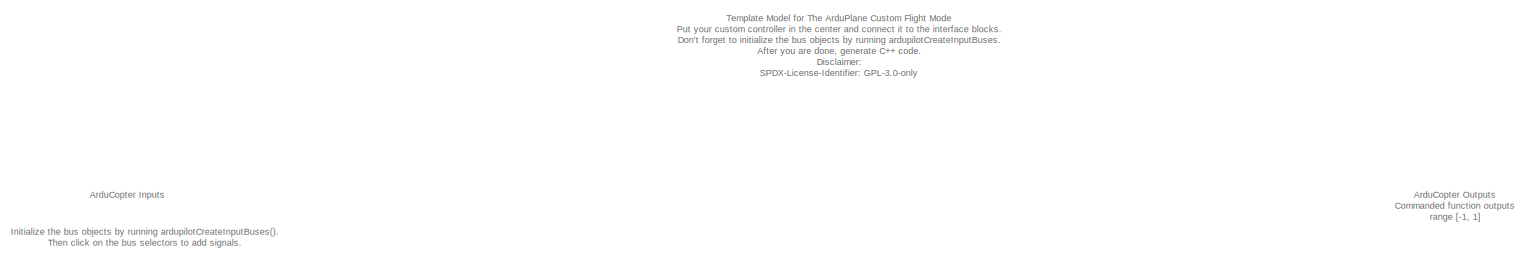
[diagram: root canvas - part 1/3, full width, top band]
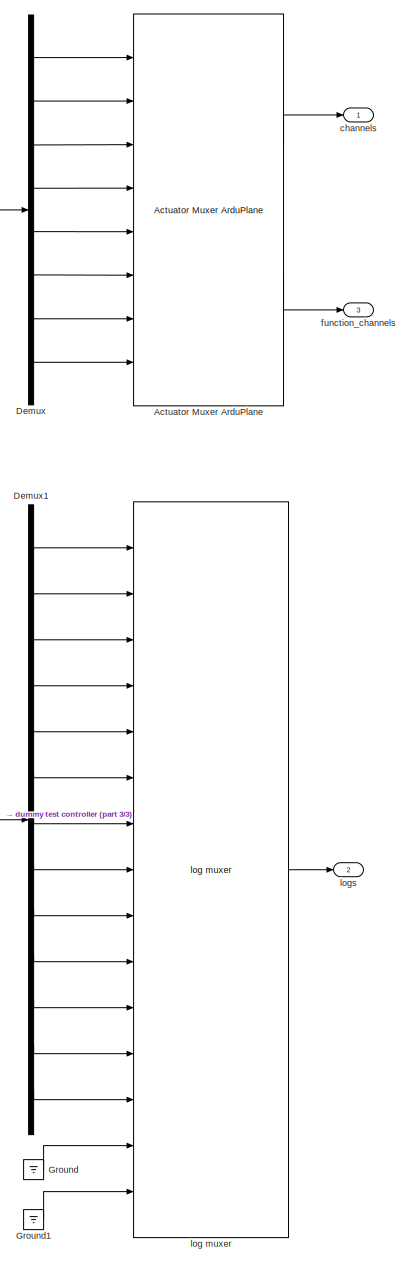
[diagram: root canvas - part 2/3, right side, full height]
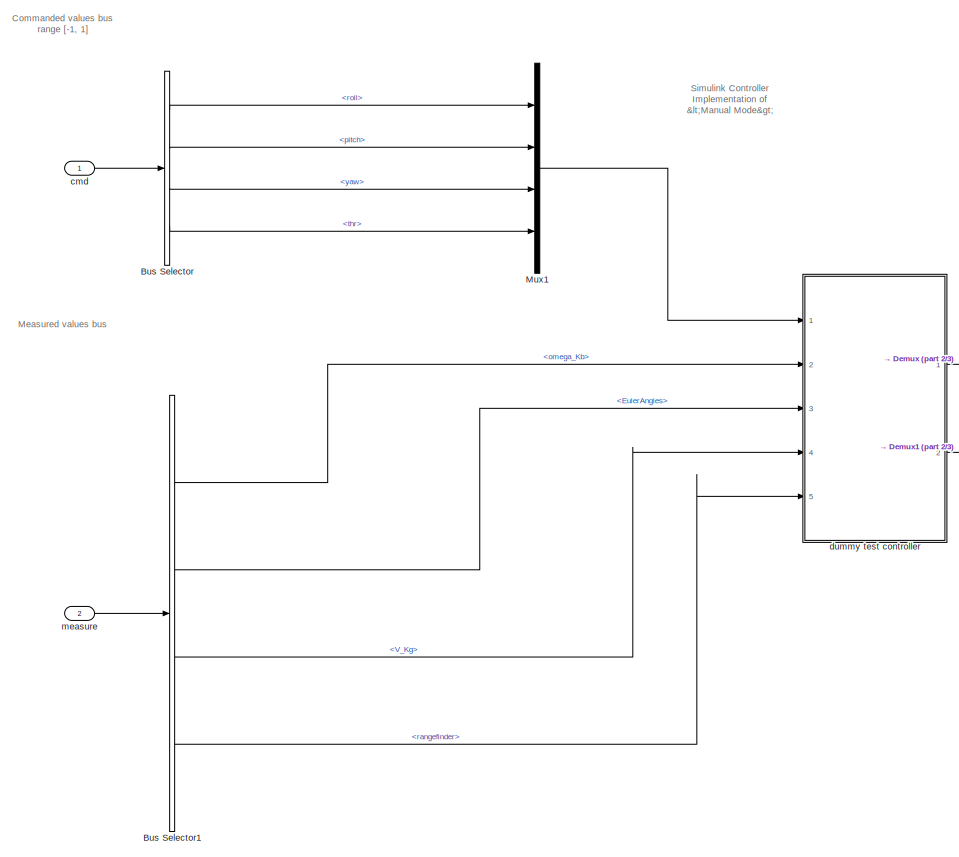
[diagram: root canvas - part 3/3, central region]
MODEL slx_166c443b05e6
KIND model
CONFIG AbsTol = auto
CONFIG EnableMultiTasking = on
CONFIG FixedStep = 0.01
CONFIG MaxStep = auto
CONFIG MinStep = auto
CONFIG RelTol = 1e-4
CONFIG SampleTimeConstraint = Unconstrained
CONFIG Solver = FixedStepAuto
CONFIG SolverName = FixedStepAuto
CONFIG StartTime = 0.0
CONFIG StopTime = 1000
BLOCK [Reference] Actuator Muxer ArduPlane  REF=ardupilot_custom_controller_lib/Actuator Muxer ArduPlane  (lib defined in slx_bbc4fb9a1307)
  Ports = [8, 2]
  SourceBlock = ardupilot_custom_controller_lib/Actuator Muxer ArduPlane
  SourceProductName = LADAC
BLOCK [BusSelector] Bus Selector
  OutputAsBus = off
  OutputSignals = roll,pitch,yaw,thr
  Ports = [1, 4]
BLOCK [BusSelector] Bus Selector1
  OutputAsBus = off
  OutputSignals = omega_Kb,EulerAngles,V_Kg,rangefinder
  Ports = [1, 4]
BLOCK [Demux] Demux
  DisplayOption = bar
  Outputs = 8
  Ports = [1, 8]
BLOCK [Demux] Demux1
  DisplayOption = bar
  Outputs = 13
  Ports = [1, 13]
BLOCK [Ground] Ground
BLOCK [Ground] Ground1
BLOCK [Mux] Mux1
  DisplayOption = bar
  Ports = [4, 1]
BLOCK [Outport] channels
  IconDisplay = Port number
  PortDimensions = [8]
BLOCK [Inport] cmd
  IconDisplay = Port number
  OutDataTypeStr = Bus: cmdBus
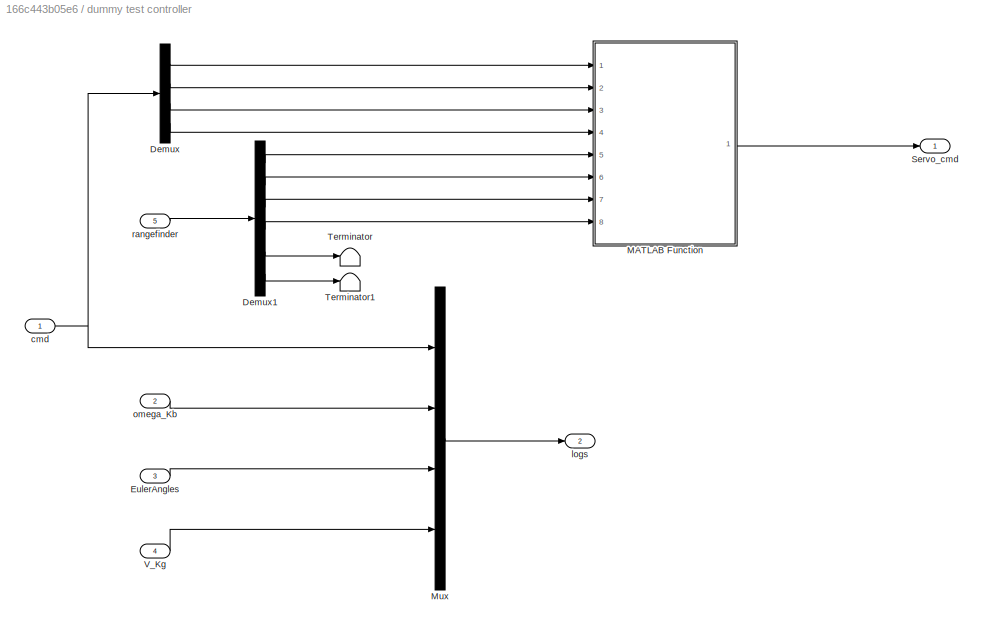
BLOCK [SubSystem] dummy test controller
  Ports = [5, 2]
  RequestExecContextInheritance = off
BLOCK [Demux] dummy test controller/Demux
  DisplayOption = bar
  Ports = [1, 4]
BLOCK [Demux] dummy test controller/Demux1
  DisplayOption = bar
  Outputs = 6
  Ports = [1, 6]
BLOCK [Inport] dummy test controller/EulerAngles
  IconDisplay = Port number
  Port = 3
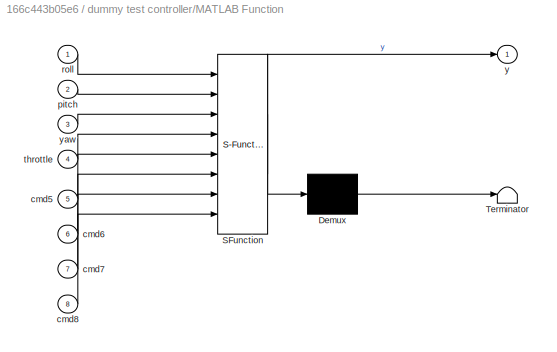
BLOCK [SubSystem] dummy test controller/MATLAB Function
  ErrorFcn = Stateflow.Translate.translate
  PermitHierarchicalResolution = ExplicitOnly
  Ports = [8, 1]
  RequestExecContextInheritance = off
  SFBlockType = MATLAB Function
  TreatAsAtomicUnit = on
BLOCK [Demux] dummy test controller/MATLAB Function/ Demux 
  Outputs = 1
  Ports = [1, 1]
BLOCK [S-Function] dummy test controller/MATLAB Function/ SFunction 
  EnableBusSupport = on
  FunctionName = sf_sfun
  PortCounts = [8 2]
  Ports = [8, 2]
  SFcnIsStateOwnerBlock = off
  SFunctionDeploymentMode = off
  Tag = Stateflow S-Function ArduPlane_TemplateController 2
BLOCK [Terminator] dummy test controller/MATLAB Function/ Terminator 
BLOCK [Inport] dummy test controller/MATLAB Function/cmd5
  IconDisplay = Port number
  Port = 5
BLOCK [Inport] dummy test controller/MATLAB Function/cmd6
  IconDisplay = Port number
  Port = 6
BLOCK [Inport] dummy test controller/MATLAB Function/cmd7
  IconDisplay = Port number
  Port = 7
BLOCK [Inport] dummy test controller/MATLAB Function/cmd8
  IconDisplay = Port number
  Port = 8
BLOCK [Inport] dummy test controller/MATLAB Function/pitch
  IconDisplay = Port number
  Port = 2
BLOCK [Inport] dummy test controller/MATLAB Function/roll
  IconDisplay = Port number
BLOCK [Inport] dummy test controller/MATLAB Function/throttle
  IconDisplay = Port number
  Port = 4
BLOCK [Outport] dummy test controller/MATLAB Function/y
  IconDisplay = Port number
BLOCK [Inport] dummy test controller/MATLAB Function/yaw
  IconDisplay = Port number
  Port = 3
BLOCK [Mux] dummy test controller/Mux
  DisplayOption = bar
  Ports = [4, 1]
BLOCK [Outport] dummy test controller/Servo_cmd
  IconDisplay = Port number
BLOCK [Terminator] dummy test controller/Terminator
BLOCK [Terminator] dummy test controller/Terminator1
BLOCK [Inport] dummy test controller/V_Kg
  IconDisplay = Port number
  Port = 4
BLOCK [Inport] dummy test controller/cmd
  IconDisplay = Port number
BLOCK [Outport] dummy test controller/logs
  IconDisplay = Port number
  Port = 2
BLOCK [Inport] dummy test controller/omega_Kb
  IconDisplay = Port number
  Port = 2
BLOCK [Inport] dummy test controller/rangefinder
  IconDisplay = Port number
  Port = 5
BLOCK [Outport] function_channels
  IconDisplay = Port number
  OutDataTypeStr = uint16
  Port = 3
  PortDimensions = [8]
BLOCK [Reference] log muxer  REF=ardupilot_custom_controller_lib/log muxer  (lib defined in slx_bbc4fb9a1307)
  Ports = [15, 1]
  SourceBlock = ardupilot_custom_controller_lib/log muxer
  SourceProductName = LADAC
BLOCK [Outport] logs
  IconDisplay = Port number
  Port = 2
BLOCK [Inport] measure
  IconDisplay = Port number
  OutDataTypeStr = Bus: measureBus
  Port = 2
ANNOTATION (root): Commanded values bus range [-1, 1]
ANNOTATION (root): ArduCopter Inputs
ANNOTATION (root): ArduCopter Outputs Commanded function outputs range [-1, 1]
ANNOTATION (root): Simulink Controller Implementation of <Manual Mode>
ANNOTATION (root): Template Model for The ArduPlane Custom Flight Mode Put your custom controller in the center and connect it to the interface blocks. Don't forget to initialize the bus objects by running ardupilotCreateInputBuses. After you are done, generate C++ code. Disclaimer: SPDX-License-Identifier: GPL-3.0-only <copyright redacted>
ANNOTATION (root): Measured values bus
ANNOTATION (root): Initialize the bus objects by running ardupilotCreateInputBuses(). Then click on the bus selectors to add signals.
LINE Actuator Muxer ArduPlane:1 -> channels:1
LINE Actuator Muxer ArduPlane:2 -> function_channels:1
LINE Bus Selector1:1 -> dummy test controller:2
LINE Bus Selector1:2 -> dummy test controller:3
LINE Bus Selector1:3 -> dummy test controller:4
LINE Bus Selector1:4 -> dummy test controller:5
LINE Bus Selector:1 -> Mux1:1
LINE Bus Selector:2 -> Mux1:2
LINE Bus Selector:3 -> Mux1:3
LINE Bus Selector:4 -> Mux1:4
LINE Demux1:1 -> log muxer:1
LINE Demux1:10 -> log muxer:10
LINE Demux1:11 -> log muxer:11
LINE Demux1:12 -> log muxer:12
LINE Demux1:13 -> log muxer:13
LINE Demux1:2 -> log muxer:2
LINE Demux1:3 -> log muxer:3
LINE Demux1:4 -> log muxer:4
LINE Demux1:5 -> log muxer:5
LINE Demux1:6 -> log muxer:6
LINE Demux1:7 -> log muxer:7
LINE Demux1:8 -> log muxer:8
LINE Demux1:9 -> log muxer:9
LINE Demux:1 -> Actuator Muxer ArduPlane:1
LINE Demux:2 -> Actuator Muxer ArduPlane:2
LINE Demux:3 -> Actuator Muxer ArduPlane:3
LINE Demux:4 -> Actuator Muxer ArduPlane:4
LINE Demux:5 -> Actuator Muxer ArduPlane:5
LINE Demux:6 -> Actuator Muxer ArduPlane:6
LINE Demux:7 -> Actuator Muxer ArduPlane:7
LINE Demux:8 -> Actuator Muxer ArduPlane:8
LINE Ground1:1 -> log muxer:15
LINE Ground:1 -> log muxer:14
LINE Mux1:1 -> dummy test controller:1
LINE cmd:1 -> Bus Selector:1
LINE dummy test controller/Demux1:1 -> dummy test controller/MATLAB Function:5
LINE dummy test controller/Demux1:2 -> dummy test controller/MATLAB Function:6
LINE dummy test controller/Demux1:3 -> dummy test controller/MATLAB Function:7
LINE dummy test controller/Demux1:4 -> dummy test controller/MATLAB Function:8
LINE dummy test controller/Demux1:5 -> dummy test controller/Terminator:1
LINE dummy test controller/Demux1:6 -> dummy test controller/Terminator1:1
LINE dummy test controller/Demux:1 -> dummy test controller/MATLAB Function:1
LINE dummy test controller/Demux:2 -> dummy test controller/MATLAB Function:2
LINE dummy test controller/Demux:3 -> dummy test controller/MATLAB Function:3
LINE dummy test controller/Demux:4 -> dummy test controller/MATLAB Function:4
LINE dummy test controller/EulerAngles:1 -> dummy test controller/Mux:3
LINE dummy test controller/MATLAB Function:1 -> dummy test controller/Servo_cmd:1
LINE dummy test controller/Mux:1 -> dummy test controller/logs:1
LINE dummy test controller/V_Kg:1 -> dummy test controller/Mux:4
NET dummy test controller/cmd:1 -> dummy test controller/Demux:1, dummy test controller/Mux:1
LINE dummy test controller/omega_Kb:1 -> dummy test controller/Mux:2
LINE dummy test controller/rangefinder:1 -> dummy test controller/Demux1:1
LINE dummy test controller:1 -> Demux:1
LINE dummy test controller:2 -> Demux1:1
LINE log muxer:1 -> logs:1
LINE measure:1 -> Bus Selector1:1
note: NET lines group one-source signal fan-out (src -> all destinations, sorted); 1:1 wires keep LINE
CHART dummy test controller/MATLAB Function states=1 transitions=1
  STATE_LABEL 'eML_blk_kernel()'
  STATE_LABEL 'SCRIPT:\nfunction y = fcn(roll,pitch,yaw,throttle,cmd5,cmd6,cmd7,cmd8)\n\ny = zeros(8,1);\n\ny(1) = roll;\ny(2) = pitch;\ny(3) = throttle;\ny(4) = yaw;\ny(5) = cmd5 ;\ny(6) = cmd6 ;\ny(7) = cmd7 ;\ny(8) = cmd8 ;\n\nend\n'
